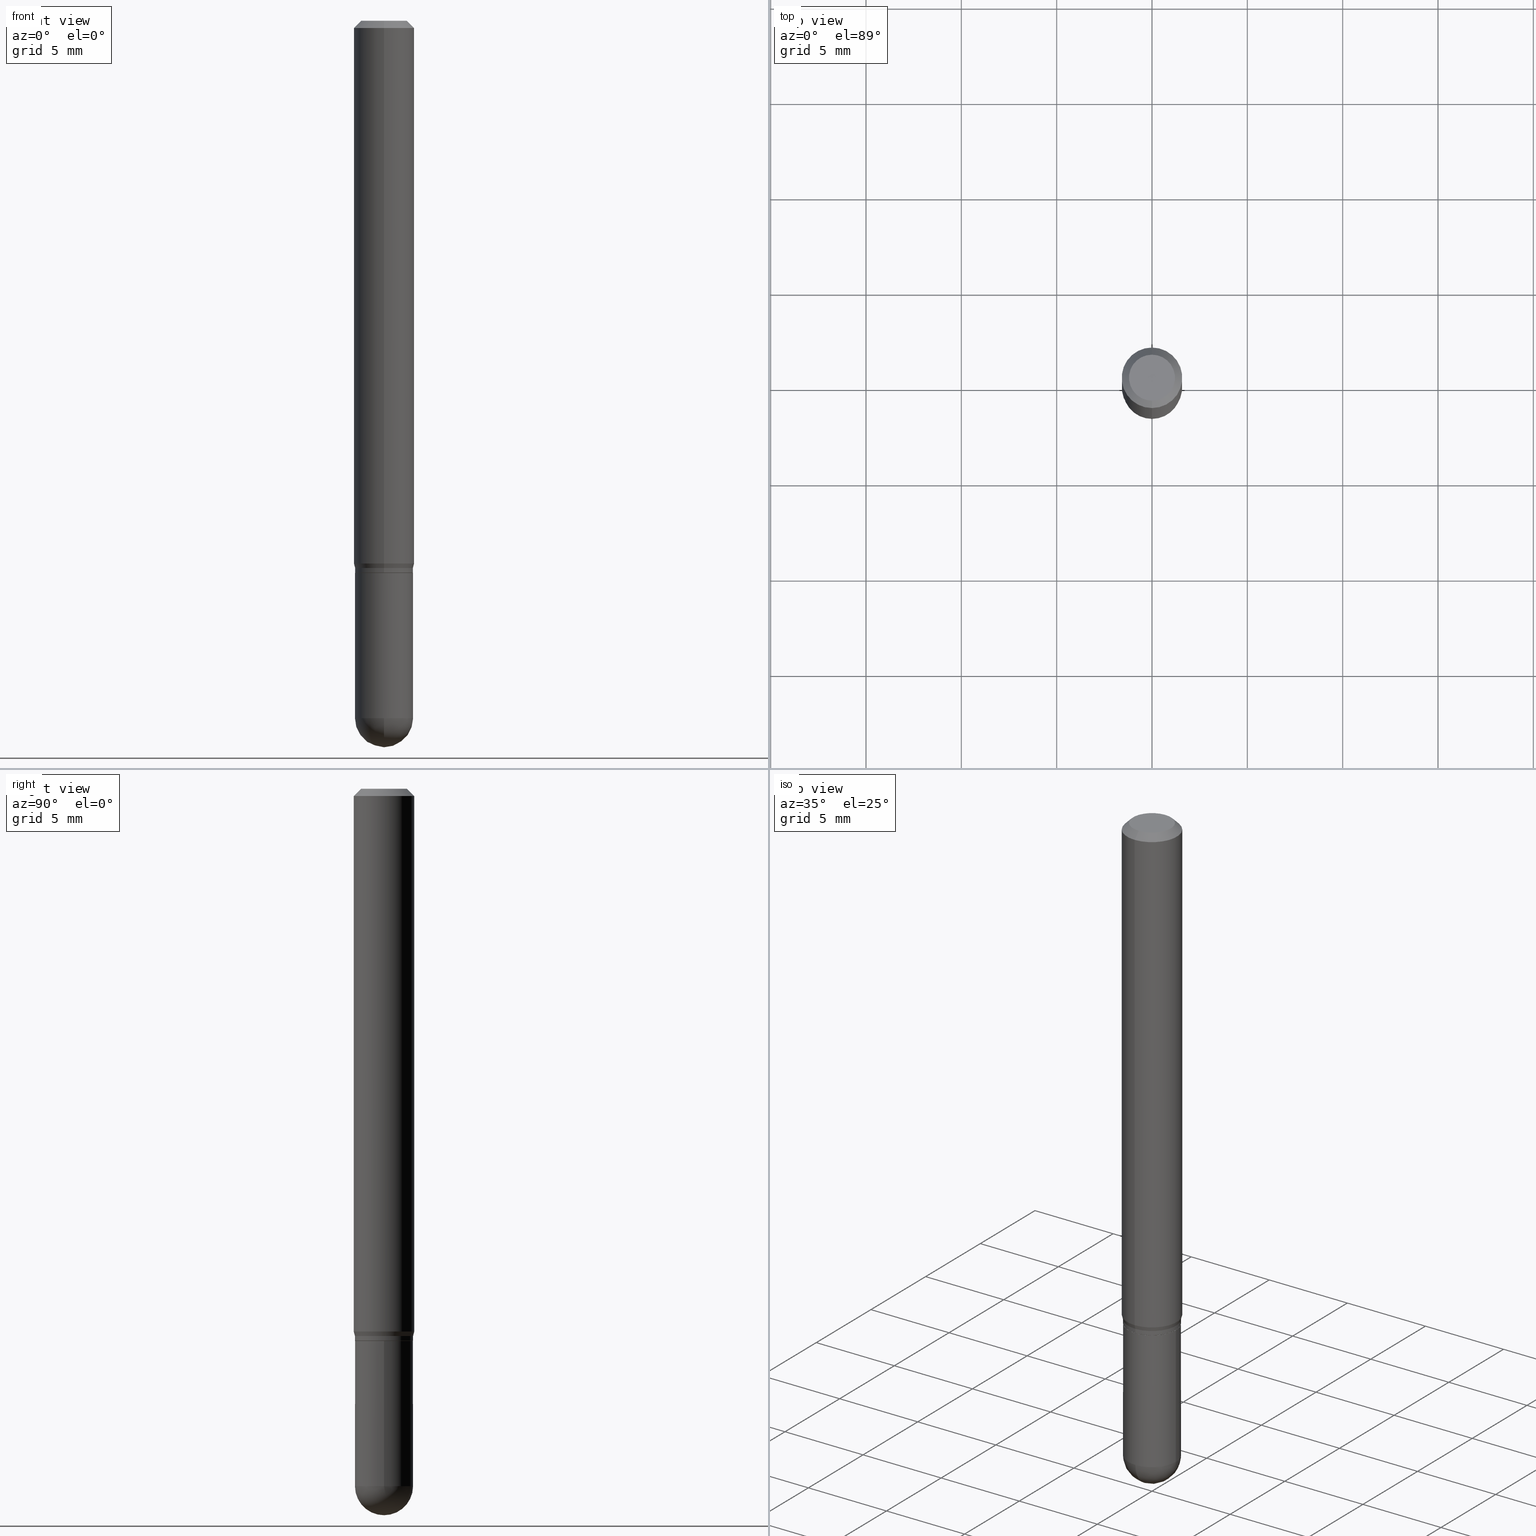
[diagram: canonical four-view strip — front | top / right | iso, engineering-drawing reading convention]
A machine part, canonical four-view strip (front | top / right | iso — engineering-drawing reading convention). The complete STEP part file that produces these views, byte-faithful:
ISO-10303-21;
HEADER;
FILE_DESCRIPTION (( 'STEP AP203' ),
    '1' );
FILE_NAME ('02605.STEP',
    '2024-03-07T20:43:27',
    ( '' ),
    ( '' ),
    'SwSTEP 2.0',
    'SolidWorks 2023',
    '' );
FILE_SCHEMA (( 'CONFIG_CONTROL_DESIGN' ));
ENDSEC;

DATA;
#1 = ORIENTED_EDGE ( 'NONE', *, *, #428, .T. ) ;
#2 = ORIENTED_EDGE ( 'NONE', *, *, #295, .F. ) ;
#3 = ORIENTED_EDGE ( 'NONE', *, *, #104, .F. ) ;
#4 = EDGE_CURVE ( 'NONE', #320, #436, #349, .T. ) ;
#5 = PRODUCT ( '02605', '02605', '', ( #13 ) ) ;
#6 = CARTESIAN_POINT ( 'NONE',  ( 2.786579962204963048E-29, -3.978588442596808727E-15, -1.139500000000000179 ) ) ;
#7 = AXIS2_PLACEMENT_3D ( 'NONE', #184, #374, #499 ) ;
#8 = LINE ( 'NONE', #171, #327 ) ;
#9 = DIMENSIONAL_EXPONENTS ( 1.000000000000000000, 0.000000000000000000, 0.000000000000000000, 0.000000000000000000, 0.000000000000000000, 0.000000000000000000, 0.000000000000000000 ) ;
#10 = CIRCLE ( 'NONE', #497, 0.06000000000000001166 ) ;
#11 = ADVANCED_FACE ( 'NONE', ( #50 ), #427, .F. ) ;
#12 = DIRECTION ( 'NONE',  ( -2.445440949719142652E-29, 3.491521230887940809E-15, 1.000000000000000000 ) ) ;
#13 = MECHANICAL_CONTEXT ( 'NONE', #162, 'mechanical' ) ;
#14 = DIRECTION ( 'NONE',  ( 1.000000000000000000, -6.982962677686266711E-15, 0.000000000000000000 ) ) ;
#15 = APPROVAL_STATUS ( 'not_yet_approved' ) ;
#16 = CIRCLE ( 'NONE', #276, 0.06000000000000006023 ) ;
#17 = DIRECTION ( 'NONE',  ( -2.445440949719142652E-29, 3.491521230887940809E-15, 1.000000000000000000 ) ) ;
#18 = VECTOR ( 'NONE', #413, 39.37007874015748143 ) ;
#19 = CARTESIAN_POINT ( 'NONE',  ( 4.263256414560955945E-16, 0.05999999999999502259, -1.440000000000000391 ) ) ;
#20 = CARTESIAN_POINT ( 'NONE',  ( -0.06000000000000001166, 4.263256414560601944E-16, -2.951361054152943763E-30 ) ) ;
#21 = EDGE_CURVE ( 'NONE', #472, #320, #191, .T. ) ;
#22 = CARTESIAN_POINT ( 'NONE',  ( 2.763348273182632256E-29, -3.945418990903373836E-15, -1.130000000000000338 ) ) ;
#23 = EDGE_CURVE ( 'NONE', #158, #119, #67, .T. ) ;
#24 = CIRCLE ( 'NONE', #65, 0.06250000000000000000 ) ;
#25 = DIRECTION ( 'NONE',  ( 1.000000000000000000, -6.982962677686268288E-15, 0.000000000000000000 ) ) ;
#26 = CARTESIAN_POINT ( 'NONE',  ( 3.668161424578794447E-31, -5.237281846332025450E-17, -0.01500000000000032904 ) ) ;
#27 = DIRECTION ( 'NONE',  ( -2.445468806185136597E-29, 3.491481338843145583E-15, 1.000000000000000000 ) ) ;
#28 = CARTESIAN_POINT ( 'NONE',  ( 4.440892098500901277E-16, 0.06249999999999610728, -1.120669872981079340 ) ) ;
#29 = LOCAL_TIME ( 15, 43, 27.00000000000000000, #230 ) ;
#30 = CARTESIAN_POINT ( 'NONE',  ( 0.000000000000000000, 0.000000000000000000, 0.000000000000000000 ) ) ;
#31 = APPROVAL_DATE_TIME ( #313, #72 ) ;
#32 = CARTESIAN_POINT ( 'NONE',  ( 2.763348273182632256E-29, -3.945418990903373836E-15, -1.130000000000000338 ) ) ;
#33 = ORIENTED_EDGE ( 'NONE', *, *, #396, .F. ) ;
#34 = CARTESIAN_POINT ( 'NONE',  ( 0.000000000000000000, 0.000000000000000000, 0.000000000000000000 ) ) ;
#35 = ORIENTED_EDGE ( 'NONE', *, *, #275, .T. ) ;
#36 = VECTOR ( 'NONE', #332, 39.37007874015748143 ) ;
#37 = ORIENTED_EDGE ( 'NONE', *, *, #190, .F. ) ;
#38 =( CONVERSION_BASED_UNIT ( 'INCH', #228 ) LENGTH_UNIT ( ) NAMED_UNIT ( #9 ) );
#39 = DIRECTION ( 'NONE',  ( -2.445440949719142932E-29, 3.491521230887940809E-15, 1.000000000000000000 ) ) ;
#40 = DATE_TIME_ROLE ( 'creation_date' ) ;
#41 = CALENDAR_DATE ( 2024, 7, 3 ) ;
#42 = ORIENTED_EDGE ( 'NONE', *, *, #255, .T. ) ;
#43 = ORIENTED_EDGE ( 'NONE', *, *, #344, .F. ) ;
#44 = SECURITY_CLASSIFICATION_LEVEL ( 'unclassified' ) ;
#45 = ORIENTED_EDGE ( 'NONE', *, *, #66, .T. ) ;
#46 = DIRECTION ( 'NONE',  ( -6.982962677686265922E-15, -1.000000000000000000, 4.591341165822291216E-15 ) ) ;
#47 = CC_DESIGN_DATE_AND_TIME_ASSIGNMENT ( #391, #40, ( #133 ) ) ;
#48 = ORIENTED_EDGE ( 'NONE', *, *, #118, .F. ) ;
#49 = APPROVAL_PERSON_ORGANIZATION ( #284, #430, #114 ) ;
#50 = FACE_OUTER_BOUND ( 'NONE', #149, .T. ) ;
#51 = EDGE_CURVE ( 'NONE', #197, #436, #509, .T. ) ;
#52 = AXIS2_PLACEMENT_3D ( 'NONE', #136, #172, #14 ) ;
#53 = LINE ( 'NONE', #206, #36 ) ;
#54 = CARTESIAN_POINT ( 'NONE',  ( 4.352074256530896070E-16, 0.05999999999999625078, -1.130000000000000560 ) ) ;
#55 = CALENDAR_DATE ( 2024, 7, 3 ) ;
#56 = SPHERICAL_SURFACE ( 'NONE', #90, 0.06000000000000009492 ) ;
#57 = DIRECTION ( 'NONE',  ( -2.445440949719142652E-29, 3.491521230887940809E-15, 1.000000000000000000 ) ) ;
#58 = CIRCLE ( 'NONE', #423, 0.04749999999999999362 ) ;
#59 = CC_DESIGN_APPROVAL ( #237, ( #106 ) ) ;
#60 = CYLINDRICAL_SURFACE ( 'NONE', #482, 0.06250000000000000000 ) ;
#61 = CONICAL_SURFACE ( 'NONE', #63, 0.06250000000000000000, 0.7853981633974483900 ) ;
#62 = CARTESIAN_POINT ( 'NONE',  ( -4.364351673553912750E-16, -0.06250000000000005551, -0.01500000000000011047 ) ) ;
#63 = AXIS2_PLACEMENT_3D ( 'NONE', #483, #435, #442 ) ;
#64 = CARTESIAN_POINT ( 'NONE',  ( 0.06000000000000001166, -4.189777606611760914E-16, 2.925706065477562106E-30 ) ) ;
#65 = AXIS2_PLACEMENT_3D ( 'NONE', #26, #180, #489 ) ;
#66 = EDGE_CURVE ( 'NONE', #79, #182, #16, .T. ) ;
#67 = CIRCLE ( 'NONE', #503, 0.06000000000000001166 ) ;
#68 =( GEOMETRIC_REPRESENTATION_CONTEXT ( 3 ) GLOBAL_UNCERTAINTY_ASSIGNED_CONTEXT ( ( #296 ) ) GLOBAL_UNIT_ASSIGNED_CONTEXT ( ( #38, #71, #449 ) ) REPRESENTATION_CONTEXT ( 'NONE', 'WORKASPACE' ) );
#69 = DIRECTION ( 'NONE',  ( -2.445468806185136597E-29, 3.491481338843145583E-15, 1.000000000000000000 ) ) ;
#70 = EDGE_LOOP ( 'NONE', ( #3, #470, #308, #477 ) ) ;
#71 =( NAMED_UNIT ( * ) PLANE_ANGLE_UNIT ( ) SI_UNIT ( $, .RADIAN. ) );
#72 = APPROVAL ( #267, 'UNSPECIFIED' ) ;
#73 = ORIENTED_EDGE ( 'NONE', *, *, #309, .F. ) ;
#74 = ORIENTED_EDGE ( 'NONE', *, *, #51, .T. ) ;
#75 = ADVANCED_FACE ( 'NONE', ( #233 ), #386, .T. ) ;
#76 = COORDINATED_UNIVERSAL_TIME_OFFSET ( 5, 0, .BEHIND. ) ;
#77 = AXIS2_PLACEMENT_3D ( 'NONE', #265, #221, #176 ) ;
#78 = ORIENTED_EDGE ( 'NONE', *, *, #375, .T. ) ;
#79 = VERTEX_POINT ( 'NONE', #446 ) ;
#80 = EDGE_LOOP ( 'NONE', ( #45, #273, #37, #312 ) ) ;
#81 = CARTESIAN_POINT ( 'NONE',  ( 2.786579962204963048E-29, -3.978588442596808727E-15, -1.139500000000000179 ) ) ;
#82 = ORIENTED_EDGE ( 'NONE', *, *, #4, .F. ) ;
#83 = EDGE_CURVE ( 'NONE', #512, #401, #471, .T. ) ;
#84 = ORIENTED_EDGE ( 'NONE', *, *, #190, .T. ) ;
#85 = AXIS2_PLACEMENT_3D ( 'NONE', #454, #379, #303 ) ;
#86 = CIRCLE ( 'NONE', #504, 0.06000000000000001166 ) ;
#87 = EDGE_LOOP ( 'NONE', ( #73, #508, #186, #264 ) ) ;
#88 = AXIS2_PLACEMENT_3D ( 'NONE', #331, #363, #246 ) ;
#89 = FACE_OUTER_BOUND ( 'NONE', #111, .T. ) ;
#90 = AXIS2_PLACEMENT_3D ( 'NONE', #170, #451, #175 ) ;
#91 = FACE_OUTER_BOUND ( 'NONE', #232, .T. ) ;
#92 = CARTESIAN_POINT ( 'NONE',  ( 3.660506712675090959E-29, -5.248243829457045539E-15, -1.500000000000000444 ) ) ;
#93 = DIRECTION ( 'NONE',  ( -2.445468806185136597E-29, 3.491481338843145583E-15, 1.000000000000000000 ) ) ;
#94 = FACE_OUTER_BOUND ( 'NONE', #395, .T. ) ;
#95 = APPROVAL_DATE_TIME ( #254, #237 ) ;
#96 = ADVANCED_FACE ( 'NONE', ( #94 ), #247, .T. ) ;
#97 = DIRECTION ( 'NONE',  ( -1.807323732225331717E-15, -0.2588190451025184080, 0.9659258262890689783 ) ) ;
#98 = DIRECTION ( 'NONE',  ( -2.445468806185136597E-29, 3.491481338843145583E-15, 1.000000000000000000 ) ) ;
#99 = CARTESIAN_POINT ( 'NONE',  ( 0.000000000000000000, 0.000000000000000000, 0.000000000000000000 ) ) ;
#100 = DIRECTION ( 'NONE',  ( -2.445440949719142652E-29, 3.491521230887940809E-15, 1.000000000000000000 ) ) ;
#101 = AXIS2_PLACEMENT_3D ( 'NONE', #242, #138, #405 ) ;
#102 = CARTESIAN_POINT ( 'NONE',  ( 2.763348273182632256E-29, -3.945418990903373836E-15, -1.130000000000000338 ) ) ;
#103 = CARTESIAN_POINT ( 'NONE',  ( -4.189777606611411350E-16, -0.06000000000000507705, -1.439999999999999947 ) ) ;
#104 = EDGE_CURVE ( 'NONE', #472, #383, #58, .T. ) ;
#105 = DATE_AND_TIME ( #340, #328 ) ;
#106 = PRODUCT_DEFINITION_FORMATION_WITH_SPECIFIED_SOURCE ( 'ANY', '', #5, .NOT_KNOWN. ) ;
#107 = ORIENTED_EDGE ( 'NONE', *, *, #271, .F. ) ;
#108 = DIRECTION ( 'NONE',  ( -2.445440949719142652E-29, 3.491521230887940809E-15, 1.000000000000000000 ) ) ;
#109 = SHAPE_DEFINITION_REPRESENTATION ( #356, #199 ) ;
#110 = CC_DESIGN_PERSON_AND_ORGANIZATION_ASSIGNMENT ( #240, #161, ( #342 ) ) ;
#111 = EDGE_LOOP ( 'NONE', ( #268, #476, #115, #113 ) ) ;
#112 = CYLINDRICAL_SURFACE ( 'NONE', #282, 0.06000000000000001166 ) ;
#113 = ORIENTED_EDGE ( 'NONE', *, *, #375, .F. ) ;
#114 = APPROVAL_ROLE ( '' ) ;
#115 = ORIENTED_EDGE ( 'NONE', *, *, #23, .F. ) ;
#116 = EDGE_LOOP ( 'NONE', ( #468, #239, #341, #120 ) ) ;
#117 = AXIS2_PLACEMENT_3D ( 'NONE', #362, #210, #369 ) ;
#118 = EDGE_CURVE ( 'NONE', #197, #343, #440, .T. ) ;
#119 = VERTEX_POINT ( 'NONE', #19 ) ;
#120 = ORIENTED_EDGE ( 'NONE', *, *, #188, .F. ) ;
#121 = EDGE_CURVE ( 'NONE', #79, #148, #8, .T. ) ;
#122 = ORIENTED_EDGE ( 'NONE', *, *, #357, .T. ) ;
#123 = PRODUCT_RELATED_PRODUCT_CATEGORY ( 'detail', '', ( #5 ) ) ;
#124 = DIRECTION ( 'NONE',  ( 2.445440949719142091E-29, -3.491521230887940809E-15, -1.000000000000000000 ) ) ;
#125 = ORIENTED_EDGE ( 'NONE', *, *, #118, .T. ) ;
#126 = CIRCLE ( 'NONE', #426, 0.06250000000000000000 ) ;
#127 = CC_DESIGN_PERSON_AND_ORGANIZATION_ASSIGNMENT ( #146, #459, ( #133 ) ) ;
#128 = EDGE_CURVE ( 'NONE', #343, #320, #280, .T. ) ;
#129 = CARTESIAN_POINT ( 'NONE',  ( -4.364351673553916201E-16, -0.06250000000000000000, 2.182200769304962759E-16 ) ) ;
#130 = DIRECTION ( 'NONE',  ( -6.982962677686265922E-15, -1.000000000000000000, 4.553079989440434359E-15 ) ) ;
#131 = CYLINDRICAL_SURFACE ( 'NONE', #218, 0.06000000000000012962 ) ;
#132 = ORGANIZATION ( 'UNSPECIFIED', 'UNSPECIFIED', '' ) ;
#133 = PRODUCT_DEFINITION ( 'UNKNOWN', '', #106, #394 ) ;
#134 = DIRECTION ( 'NONE',  ( -6.982962677686265922E-15, -1.000000000000000000, 4.591341165822291216E-15 ) ) ;
#135 = APPLICATION_PROTOCOL_DEFINITION ( 'international standard', 'config_control_design', 1994, #201 ) ;
#136 = CARTESIAN_POINT ( 'NONE',  ( 3.521475080906597305E-29, -5.027733127934130649E-15, -1.440000000000000169 ) ) ;
#137 = MANIFOLD_SOLID_BREP ( 'Body-Move/Copy2[1]', #177 ) ;
#138 = DIRECTION ( 'NONE',  ( 1.000000000000000000, -6.982962677686265922E-15, 4.883557194083112901E-29 ) ) ;
#139 = DIRECTION ( 'NONE',  ( -2.445440949719142652E-29, 3.491521230887940809E-15, 1.000000000000000000 ) ) ;
#140 = VECTOR ( 'NONE', #204, 39.37007874015748143 ) ;
#141 = CIRCLE ( 'NONE', #323, 0.05949999999999999734 ) ;
#142 = FACE_OUTER_BOUND ( 'NONE', #187, .T. ) ;
#143 = FACE_OUTER_BOUND ( 'NONE', #272, .T. ) ;
#144 = FACE_OUTER_BOUND ( 'NONE', #225, .T. ) ;
#145 = LINE ( 'NONE', #463, #388 ) ;
#146 = PERSON_AND_ORGANIZATION ( #452, #132 ) ;
#147 = VECTOR ( 'NONE', #330, 39.37007874015748143 ) ;
#148 = VERTEX_POINT ( 'NONE', #281 ) ;
#149 = EDGE_LOOP ( 'NONE', ( #155, #316 ) ) ;
#150 = ORIENTED_EDGE ( 'NONE', *, *, #203, .F. ) ;
#151 = DIRECTION ( 'NONE',  ( -2.445440949719142652E-29, 3.491521230887940809E-15, 1.000000000000000000 ) ) ;
#152 = VERTEX_POINT ( 'NONE', #439 ) ;
#153 = VECTOR ( 'NONE', #229, 39.37007874015748143 ) ;
#154 = ADVANCED_FACE ( 'NONE', ( #219 ), #461, .T. ) ;
#155 = ORIENTED_EDGE ( 'NONE', *, *, #203, .T. ) ;
#156 = VECTOR ( 'NONE', #97, 39.37007874015748854 ) ;
#157 = VERTEX_POINT ( 'NONE', #492 ) ;
#158 = VERTEX_POINT ( 'NONE', #215 ) ;
#159 = ORIENTED_EDGE ( 'NONE', *, *, #21, .F. ) ;
#160 = ORIENTED_EDGE ( 'NONE', *, *, #255, .F. ) ;
#161 = PERSON_AND_ORGANIZATION_ROLE ( 'classification_officer' ) ;
#162 = APPLICATION_CONTEXT ( 'configuration controlled 3d designs of mechanical parts and assemblies' ) ;
#163 = AXIS2_PLACEMENT_3D ( 'NONE', #244, #12, #402 ) ;
#164 = VECTOR ( 'NONE', #373, 39.37007874015748854 ) ;
#165 = EDGE_CURVE ( 'NONE', #231, #197, #338, .T. ) ;
#166 = CARTESIAN_POINT ( 'NONE',  ( 3.840629472727447874E-16, 0.04749999999999999362, -4.939923113072091241E-16 ) ) ;
#167 = ADVANCED_FACE ( 'NONE', ( #144 ), #61, .T. ) ;
#168 = CIRCLE ( 'NONE', #52, 0.06000000000000001166 ) ;
#169 = SPHERICAL_SURFACE ( 'NONE', #101, 0.06000000000000009492 ) ;
#170 = CARTESIAN_POINT ( 'NONE',  ( 3.516344083171520973E-29, -5.035081008729014505E-15, -1.440000000000000169 ) ) ;
#171 = CARTESIAN_POINT ( 'NONE',  ( -4.189777606611768802E-16, -0.06000000000000012962, 2.094912738532768765E-16 ) ) ;
#172 = DIRECTION ( 'NONE',  ( -2.445468806185136597E-29, 3.491481338843145583E-15, 1.000000000000000000 ) ) ;
#173 = DIRECTION ( 'NONE',  ( -6.982962677686265922E-15, -1.000000000000000000, 4.553079989440423315E-15 ) ) ;
#174 = CARTESIAN_POINT ( 'NONE',  ( 4.227729277772874483E-16, 0.05949999999999602135, -1.140000000000000346 ) ) ;
#175 = DIRECTION ( 'NONE',  ( -6.982962677686265922E-15, -1.000000000000000000, 4.553079989440431203E-15 ) ) ;
#176 = DIRECTION ( 'NONE',  ( 6.982962677686265922E-15, 1.000000000000000000, -3.483106191921935554E-15 ) ) ;
#177 = CLOSED_SHELL ( 'NONE', ( #96, #335, #420, #261, #444 ) ) ;
#178 = ADVANCED_FACE ( 'NONE', ( #91 ), #60, .T. ) ;
#179 = CIRCLE ( 'NONE', #302, 0.06000000000000009492 ) ;
#180 = DIRECTION ( 'NONE',  ( -2.445440949719142652E-29, 3.491521230887940809E-15, 1.000000000000000000 ) ) ;
#181 = PLANE ( 'NONE',  #443 ) ;
#182 = VERTEX_POINT ( 'NONE', #216 ) ;
#183 = ORIENTED_EDGE ( 'NONE', *, *, #222, .F. ) ;
#184 = CARTESIAN_POINT ( 'NONE',  ( 4.189777606612038494E-16, 0.05999999999999602179, -1.140000000000000346 ) ) ;
#185 = AXIS2_PLACEMENT_3D ( 'NONE', #364, #17, #324 ) ;
#186 = ORIENTED_EDGE ( 'NONE', *, *, #457, .T. ) ;
#187 = EDGE_LOOP ( 'NONE', ( #429, #125, #399, #262 ) ) ;
#188 = EDGE_CURVE ( 'NONE', #119, #152, #10, .T. ) ;
#189 = DIRECTION ( 'NONE',  ( -2.445440949719142652E-29, 3.491521230887940809E-15, 1.000000000000000000 ) ) ;
#190 = EDGE_CURVE ( 'NONE', #148, #231, #318, .T. ) ;
#191 = LINE ( 'NONE', #474, #153 ) ;
#192 = COORDINATED_UNIVERSAL_TIME_OFFSET ( 5, 0, .BEHIND. ) ;
#193 = ORIENTED_EDGE ( 'NONE', *, *, #457, .F. ) ;
#194 = AXIS2_PLACEMENT_3D ( 'NONE', #198, #124, #195 ) ;
#195 = DIRECTION ( 'NONE',  ( 6.982962677686265922E-15, 1.000000000000000000, -3.491521230887940809E-15 ) ) ;
#196 = AXIS2_PLACEMENT_3D ( 'NONE', #32, #108, #339 ) ;
#197 = VERTEX_POINT ( 'NONE', #28 ) ;
#198 = CARTESIAN_POINT ( 'NONE',  ( 3.316907271900976096E-16, 0.04749999999999999362, -3.299197848871931212E-16 ) ) ;
#199 = ADVANCED_BREP_SHAPE_REPRESENTATION ( '02605', ( #137, #478, #351 ), #68 ) ;
#200 = EDGE_CURVE ( 'NONE', #436, #320, #24, .T. ) ;
#201 = APPLICATION_CONTEXT ( 'configuration controlled 3d designs of mechanical parts and assemblies' ) ;
#202 = AXIS2_PLACEMENT_3D ( 'NONE', #6, #360, #130 ) ;
#203 = EDGE_CURVE ( 'NONE', #383, #472, #226, .T. ) ;
#204 = DIRECTION ( 'NONE',  ( -2.445440949719142932E-29, 3.491521230887940809E-15, 1.000000000000000000 ) ) ;
#205 = EDGE_CURVE ( 'NONE', #158, #422, #491, .T. ) ;
#206 = CARTESIAN_POINT ( 'NONE',  ( 4.364351673553919652E-16, 0.06249999999999995143, -0.01500000000000054588 ) ) ;
#207 = DIRECTION ( 'NONE',  ( -2.445440949719142652E-29, 3.491521230887940809E-15, 1.000000000000000000 ) ) ;
#208 = DIRECTION ( 'NONE',  ( -6.982962677686266711E-15, -1.000000000000000000, 3.491521230887940809E-15 ) ) ;
#209 = CC_DESIGN_DATE_AND_TIME_ASSIGNMENT ( #321, #475, ( #342 ) ) ;
#210 = DIRECTION ( 'NONE',  ( -2.445468806185136597E-29, 3.491481338843145583E-15, 1.000000000000000000 ) ) ;
#211 = DIRECTION ( 'NONE',  ( -2.445440949719142652E-29, 3.491521230887940809E-15, 1.000000000000000000 ) ) ;
#212 = DIRECTION ( 'NONE',  ( -6.982962677686265922E-15, -1.000000000000000000, 4.370956789862821150E-15 ) ) ;
#213 = AXIS2_PLACEMENT_3D ( 'NONE', #30, #306, #297 ) ;
#214 = ADVANCED_FACE ( 'NONE', ( #286 ), #416, .T. ) ;
#215 = CARTESIAN_POINT ( 'NONE',  ( 0.06000000000000001166, -4.922988687768835701E-15, -1.440000000000000169 ) ) ;
#216 = CARTESIAN_POINT ( 'NONE',  ( 4.263256414560887906E-16, 0.05999999999999614669, -1.139500000000000401 ) ) ;
#217 = DIRECTION ( 'NONE',  ( -6.982962677686265922E-15, -1.000000000000000000, 0.000000000000000000 ) ) ;
#218 = AXIS2_PLACEMENT_3D ( 'NONE', #490, #100, #252 ) ;
#219 = FACE_OUTER_BOUND ( 'NONE', #301, .T. ) ;
#220 = ADVANCED_FACE ( 'NONE', ( #142 ), #412, .T. ) ;
#221 = DIRECTION ( 'NONE',  ( 2.445440949719142652E-29, -3.491521230887940809E-15, -1.000000000000000000 ) ) ;
#222 = EDGE_CURVE ( 'NONE', #148, #343, #257, .T. ) ;
#223 = DIRECTION ( 'NONE',  ( 1.000000000000000000, -6.982962677686266711E-15, 0.000000000000000000 ) ) ;
#224 = COORDINATED_UNIVERSAL_TIME_OFFSET ( 5, 0, .BEHIND. ) ;
#225 = EDGE_LOOP ( 'NONE', ( #159, #150, #433, #425 ) ) ;
#226 = CIRCLE ( 'NONE', #88, 0.04749999999999999362 ) ;
#227 = ORIENTED_EDGE ( 'NONE', *, *, #23, .T. ) ;
#228 = LENGTH_MEASURE_WITH_UNIT ( LENGTH_MEASURE( 0.02539999999999999897 ), #389 );
#229 = DIRECTION ( 'NONE',  ( -4.851104656540964275E-15, -0.7071067811865500152, -0.7071067811865450192 ) ) ;
#230 = COORDINATED_UNIVERSAL_TIME_OFFSET ( 5, 0, .BEHIND. ) ;
#231 = VERTEX_POINT ( 'NONE', #54 ) ;
#232 = EDGE_LOOP ( 'NONE', ( #387, #74, #82, #354 ) ) ;
#233 = FACE_OUTER_BOUND ( 'NONE', #87, .T. ) ;
#234 = ORIENTED_EDGE ( 'NONE', *, *, #165, .T. ) ;
#235 = CARTESIAN_POINT ( 'NONE',  ( 3.668161424578794447E-31, -5.237281846332025450E-17, -0.01500000000000032904 ) ) ;
#236 = CONICAL_SURFACE ( 'NONE', #77, 0.06250000000000000000, 0.7853981633974483900 ) ;
#237 = APPROVAL ( #15, 'UNSPECIFIED' ) ;
#238 = CC_DESIGN_SECURITY_CLASSIFICATION ( #342, ( #106 ) ) ;
#239 = ORIENTED_EDGE ( 'NONE', *, *, #500, .T. ) ;
#240 = PERSON_AND_ORGANIZATION ( #452, #132 ) ;
#241 = APPLICATION_PROTOCOL_DEFINITION ( 'international standard', 'config_control_design', 1994, #162 ) ;
#242 = CARTESIAN_POINT ( 'NONE',  ( 3.516344083171520973E-29, -5.035081008729014505E-15, -1.440000000000000169 ) ) ;
#243 = DIRECTION ( 'NONE',  ( -2.445440949719142652E-29, 3.491521230887940809E-15, 1.000000000000000000 ) ) ;
#244 = CARTESIAN_POINT ( 'NONE',  ( 2.787802682679822858E-29, -3.980334203212252420E-15, -1.140000000000000124 ) ) ;
#245 = CARTESIAN_POINT ( 'NONE',  ( 2.787834439051055989E-29, -3.980288726281186698E-15, -1.140000000000000124 ) ) ;
#246 = DIRECTION ( 'NONE',  ( -6.982962677686266711E-15, -1.000000000000000000, 3.491521230887940809E-15 ) ) ;
#247 = CYLINDRICAL_SURFACE ( 'NONE', #377, 0.06000000000000001166 ) ;
#248 = PERSON_AND_ORGANIZATION ( #452, #132 ) ;
#249 = PERSON_AND_ORGANIZATION_ROLE ( 'design_owner' ) ;
#250 = VECTOR ( 'NONE', #365, 39.37007874015748143 ) ;
#251 = DIRECTION ( 'NONE',  ( 1.000000000000000000, 0.000000000000000000, 0.000000000000000000 ) ) ;
#252 = DIRECTION ( 'NONE',  ( -6.982962677686265922E-15, -1.000000000000000000, 3.491521230887940414E-15 ) ) ;
#253 = CARTESIAN_POINT ( 'NONE',  ( 0.000000000000000000, 0.000000000000000000, 0.000000000000000000 ) ) ;
#254 = DATE_AND_TIME ( #55, #292 ) ;
#255 = EDGE_CURVE ( 'NONE', #401, #512, #141, .T. ) ;
#256 = DIRECTION ( 'NONE',  ( 1.000000000000000000, -7.105427357601001070E-15, 4.926315508542082329E-29 ) ) ;
#257 = LINE ( 'NONE', #448, #156 ) ;
#258 = CARTESIAN_POINT ( 'NONE',  ( 3.516344083171520973E-29, -5.035081008729014505E-15, -1.440000000000000169 ) ) ;
#259 = APPROVAL_DATE_TIME ( #105, #430 ) ;
#260 = AXIS2_PLACEMENT_3D ( 'NONE', #484, #57, #212 ) ;
#261 = ADVANCED_FACE ( 'NONE', ( #372 ), #56, .T. ) ;
#262 = ORIENTED_EDGE ( 'NONE', *, *, #200, .F. ) ;
#263 = FACE_OUTER_BOUND ( 'NONE', #70, .T. ) ;
#264 = ORIENTED_EDGE ( 'NONE', *, *, #275, .F. ) ;
#265 = CARTESIAN_POINT ( 'NONE',  ( 3.668161424578794447E-31, -5.237281846332025450E-17, -0.01500000000000032904 ) ) ;
#266 = EDGE_LOOP ( 'NONE', ( #274, #1, #432, #48 ) ) ;
#267 = APPROVAL_STATUS ( 'not_yet_approved' ) ;
#268 = ORIENTED_EDGE ( 'NONE', *, *, #500, .F. ) ;
#269 = AXIS2_PLACEMENT_3D ( 'NONE', #245, #488, #25 ) ;
#270 = EDGE_LOOP ( 'NONE', ( #160, #390 ) ) ;
#271 = EDGE_CURVE ( 'NONE', #343, #197, #126, .T. ) ;
#272 = EDGE_LOOP ( 'NONE', ( #122, #305 ) ) ;
#273 = ORIENTED_EDGE ( 'NONE', *, *, #295, .T. ) ;
#274 = ORIENTED_EDGE ( 'NONE', *, *, #165, .F. ) ;
#275 = EDGE_CURVE ( 'NONE', #182, #79, #410, .T. ) ;
#276 = AXIS2_PLACEMENT_3D ( 'NONE', #81, #189, #345 ) ;
#277 = DIRECTION ( 'NONE',  ( 1.000000000000000000, -6.982962677686266711E-15, 0.000000000000000000 ) ) ;
#278 = LOCAL_TIME ( 15, 43, 27.00000000000000000, #224 ) ;
#279 = PERSON_AND_ORGANIZATION ( #452, #132 ) ;
#280 = LINE ( 'NONE', #129, #140 ) ;
#281 = CARTESIAN_POINT ( 'NONE',  ( -4.189777606611496152E-16, -0.06000000000000414030, -1.130000000000000115 ) ) ;
#282 = AXIS2_PLACEMENT_3D ( 'NONE', #34, #27, #384 ) ;
#283 = CARTESIAN_POINT ( 'NONE',  ( 2.740531998504480438E-29, -3.912842654329929133E-15, -1.120669872981078896 ) ) ;
#284 = PERSON_AND_ORGANIZATION ( #452, #132 ) ;
#285 = LINE ( 'NONE', #411, #18 ) ;
#286 = FACE_OUTER_BOUND ( 'NONE', #266, .T. ) ;
#287 = PERSON_AND_ORGANIZATION_ROLE ( 'creator' ) ;
#288 = EDGE_CURVE ( 'NONE', #317, #119, #314, .T. ) ;
#289 = DIRECTION ( 'NONE',  ( 5.024295867788190974E-15, 0.7071067811865681119, 0.7071067811865270336 ) ) ;
#290 = CARTESIAN_POINT ( 'NONE',  ( 2.787802682679822858E-29, -3.980334203212252420E-15, -1.140000000000000124 ) ) ;
#291 = COORDINATED_UNIVERSAL_TIME_OFFSET ( 5, 0, .BEHIND. ) ;
#292 = LOCAL_TIME ( 15, 43, 27.00000000000000000, #291 ) ;
#293 = DIRECTION ( 'NONE',  ( -6.982962677686265922E-15, -1.000000000000000000, 3.491521230887940414E-15 ) ) ;
#294 = DIRECTION ( 'NONE',  ( -6.982962677686265922E-15, -1.000000000000000000, 3.491521230887940809E-15 ) ) ;
#295 = EDGE_CURVE ( 'NONE', #182, #231, #285, .T. ) ;
#296 = UNCERTAINTY_MEASURE_WITH_UNIT (LENGTH_MEASURE( 1.000000000000000082E-05 ), #38, 'distance_accuracy_value', 'NONE');
#297 = DIRECTION ( 'NONE',  ( -6.982962677686265922E-15, -1.000000000000000000, 3.491521230887940414E-15 ) ) ;
#298 = ADVANCED_FACE ( 'NONE', ( #493 ), #495, .T. ) ;
#299 = CC_DESIGN_PERSON_AND_ORGANIZATION_ASSIGNMENT ( #248, #287, ( #106 ) ) ;
#300 = CARTESIAN_POINT ( 'NONE',  ( -4.154862793223048825E-16, -0.05950000000000398026, -1.139999999999999902 ) ) ;
#301 = EDGE_LOOP ( 'NONE', ( #42, #319, #392, #193 ) ) ;
#302 = AXIS2_PLACEMENT_3D ( 'NONE', #258, #415, #217 ) ;
#303 = DIRECTION ( 'NONE',  ( -6.982962677686265922E-15, -1.000000000000000000, 4.591341165822291216E-15 ) ) ;
#304 = CALENDAR_DATE ( 2024, 7, 3 ) ;
#305 = ORIENTED_EDGE ( 'NONE', *, *, #344, .T. ) ;
#306 = DIRECTION ( 'NONE',  ( -2.445440949719142652E-29, 3.491521230887940809E-15, 1.000000000000000000 ) ) ;
#307 = DIRECTION ( 'NONE',  ( -2.445440949719142652E-29, 3.491521230887940809E-15, 1.000000000000000000 ) ) ;
#308 = ORIENTED_EDGE ( 'NONE', *, *, #4, .T. ) ;
#309 = EDGE_CURVE ( 'NONE', #512, #182, #441, .T. ) ;
#310 = DIRECTION ( 'NONE',  ( -2.445440949719142652E-29, 3.491521230887940809E-15, 1.000000000000000000 ) ) ;
#311 = CARTESIAN_POINT ( 'NONE',  ( 2.787802682679822858E-29, -3.980334203212252420E-15, -1.140000000000000124 ) ) ;
#312 = ORIENTED_EDGE ( 'NONE', *, *, #121, .F. ) ;
#313 = DATE_AND_TIME ( #41, #29 ) ;
#314 = CIRCLE ( 'NONE', #453, 0.06000000000000009492 ) ;
#315 = ORIENTED_EDGE ( 'NONE', *, *, #428, .F. ) ;
#316 = ORIENTED_EDGE ( 'NONE', *, *, #104, .T. ) ;
#317 = VERTEX_POINT ( 'NONE', #92 ) ;
#318 = CIRCLE ( 'NONE', #465, 0.06000000000000019901 ) ;
#319 = ORIENTED_EDGE ( 'NONE', *, *, #309, .T. ) ;
#320 = VERTEX_POINT ( 'NONE', #62 ) ;
#321 = DATE_AND_TIME ( #348, #480 ) ;
#322 = CARTESIAN_POINT ( 'NONE',  ( 8.024593496627658608E-45, -1.145725418801816720E-30, -3.281450528400319563E-16 ) ) ;
#323 = AXIS2_PLACEMENT_3D ( 'NONE', #290, #207, #134 ) ;
#324 = DIRECTION ( 'NONE',  ( -6.982962677686265922E-15, -1.000000000000000000, 4.553079989440423315E-15 ) ) ;
#325 = DIRECTION ( 'NONE',  ( -2.445440949719142652E-29, 3.491521230887940809E-15, 1.000000000000000000 ) ) ;
#326 = CARTESIAN_POINT ( 'NONE',  ( 3.516344083171520973E-29, -5.035081008729014505E-15, -1.440000000000000169 ) ) ;
#327 = VECTOR ( 'NONE', #481, 39.37007874015748143 ) ;
#328 = LOCAL_TIME ( 15, 43, 27.00000000000000000, #76 ) ;
#329 = CARTESIAN_POINT ( 'NONE',  ( -4.364351673553640100E-16, -0.06250000000000388578, -1.120669872981078674 ) ) ;
#330 = DIRECTION ( 'NONE',  ( -2.445468806185136877E-29, 3.491481338843145188E-15, 1.000000000000000000 ) ) ;
#331 = CARTESIAN_POINT ( 'NONE',  ( 8.024593496627658608E-45, -1.145725418801816720E-30, -3.281450528400319563E-16 ) ) ;
#332 = DIRECTION ( 'NONE',  ( 4.937700262164548042E-15, 0.7071067811865451302, -0.7071067811865499042 ) ) ;
#333 = CARTESIAN_POINT ( 'NONE',  ( -3.773273898774340269E-16, -0.04749999999999999362, -1.622977943728547640E-16 ) ) ;
#334 = AXIS2_PLACEMENT_3D ( 'NONE', #102, #243, #336 ) ;
#335 = ADVANCED_FACE ( 'NONE', ( #89 ), #169, .T. ) ;
#336 = DIRECTION ( 'NONE',  ( -6.982962677686265922E-15, -1.000000000000000000, 4.553079989440423315E-15 ) ) ;
#337 = CARTESIAN_POINT ( 'NONE',  ( 3.521475080906597305E-29, -5.027733127934130649E-15, -1.440000000000000169 ) ) ;
#338 = LINE ( 'NONE', #498, #164 ) ;
#339 = DIRECTION ( 'NONE',  ( -6.982962677686265922E-15, -1.000000000000000000, 4.553079989440423315E-15 ) ) ;
#340 = CALENDAR_DATE ( 2024, 7, 3 ) ;
#341 = ORIENTED_EDGE ( 'NONE', *, *, #511, .F. ) ;
#342 = SECURITY_CLASSIFICATION ( '', '', #44 ) ;
#343 = VERTEX_POINT ( 'NONE', #329 ) ;
#344 = EDGE_CURVE ( 'NONE', #157, #422, #378, .T. ) ;
#345 = DIRECTION ( 'NONE',  ( -6.982962677686265922E-15, -1.000000000000000000, 4.553079989440434359E-15 ) ) ;
#346 = ORIENTED_EDGE ( 'NONE', *, *, #396, .T. ) ;
#347 = EDGE_LOOP ( 'NONE', ( #84, #234, #107, #183 ) ) ;
#348 = CALENDAR_DATE ( 2024, 7, 3 ) ;
#349 = CIRCLE ( 'NONE', #458, 0.06250000000000000000 ) ;
#350 = ORIENTED_EDGE ( 'NONE', *, *, #357, .F. ) ;
#351 = AXIS2_PLACEMENT_3D ( 'NONE', #99, #404, #251 ) ;
#352 = EDGE_LOOP ( 'NONE', ( #2, #35, #501, #315 ) ) ;
#353 = EDGE_CURVE ( 'NONE', #383, #436, #53, .T. ) ;
#354 = ORIENTED_EDGE ( 'NONE', *, *, #128, .F. ) ;
#355 = CARTESIAN_POINT ( 'NONE',  ( 3.521475080906597305E-29, -5.027733127934130649E-15, -1.440000000000000169 ) ) ;
#356 = PRODUCT_DEFINITION_SHAPE ( 'NONE', 'NONE',  #133 ) ;
#357 = EDGE_CURVE ( 'NONE', #422, #157, #400, .T. ) ;
#358 = PERSON_AND_ORGANIZATION_ROLE ( 'design_supplier' ) ;
#359 = APPROVAL_PERSON_ORGANIZATION ( #279, #72, #424 ) ;
#360 = DIRECTION ( 'NONE',  ( -2.445440949719142652E-29, 3.491521230887940809E-15, 1.000000000000000000 ) ) ;
#361 = PERSON_AND_ORGANIZATION ( #452, #132 ) ;
#362 = CARTESIAN_POINT ( 'NONE',  ( 2.787834439051055989E-29, -3.980288726281186698E-15, -1.140000000000000124 ) ) ;
#363 = DIRECTION ( 'NONE',  ( -2.445440949719142652E-29, 3.491521230887940809E-15, 1.000000000000000000 ) ) ;
#364 = CARTESIAN_POINT ( 'NONE',  ( 2.763348273182632256E-29, -3.945418990903373836E-15, -1.130000000000000338 ) ) ;
#365 = DIRECTION ( 'NONE',  ( -2.445468806185136877E-29, 3.491481338843145188E-15, 1.000000000000000000 ) ) ;
#366 = DIRECTION ( 'NONE',  ( 1.000000000000000000, -6.982962677686266711E-15, 4.876176775795935793E-29 ) ) ;
#367 = APPROVAL_PERSON_ORGANIZATION ( #361, #237, #447 ) ;
#368 = CC_DESIGN_APPROVAL ( #72, ( #342 ) ) ;
#369 = DIRECTION ( 'NONE',  ( 1.000000000000000000, -6.982962677686268288E-15, 0.000000000000000000 ) ) ;
#370 = DIRECTION ( 'NONE',  ( -6.982962677686265922E-15, -1.000000000000000000, 3.491521230887940414E-15 ) ) ;
#371 = PERSON_AND_ORGANIZATION ( #452, #132 ) ;
#372 = FACE_OUTER_BOUND ( 'NONE', #116, .T. ) ;
#373 = DIRECTION ( 'NONE',  ( 1.839019923739601893E-15, 0.2588190451025252359, 0.9659258262890670910 ) ) ;
#374 = DIRECTION ( 'NONE',  ( 2.438088387897960049E-29, -3.491481338843145188E-15, -1.000000000000000000 ) ) ;
#375 = EDGE_CURVE ( 'NONE', #464, #158, #168, .T. ) ;
#376 = CARTESIAN_POINT ( 'NONE',  ( 3.521475080906597305E-29, -5.027733127934130649E-15, -1.440000000000000169 ) ) ;
#377 = AXIS2_PLACEMENT_3D ( 'NONE', #407, #98, #366 ) ;
#378 = CIRCLE ( 'NONE', #269, 0.05999999999999999778 ) ;
#379 = DIRECTION ( 'NONE',  ( -2.445440949719142652E-29, 3.491521230887940809E-15, 1.000000000000000000 ) ) ;
#380 = FACE_OUTER_BOUND ( 'NONE', #270, .T. ) ;
#381 = CARTESIAN_POINT ( 'NONE',  ( 4.245492846166878976E-16, 0.05949999999999602135, -1.140000000000000346 ) ) ;
#382 = CC_DESIGN_PERSON_AND_ORGANIZATION_ASSIGNMENT ( #371, #358, ( #106 ) ) ;
#383 = VERTEX_POINT ( 'NONE', #166 ) ;
#384 = DIRECTION ( 'NONE',  ( 1.000000000000000000, -6.982962677686266711E-15, 4.876176775795935793E-29 ) ) ;
#385 = AXIS2_PLACEMENT_3D ( 'NONE', #311, #151, #46 ) ;
#386 = CONICAL_SURFACE ( 'NONE', #385, 0.05949999999999999734, 0.7853981633974739252 ) ;
#387 = ORIENTED_EDGE ( 'NONE', *, *, #271, .T. ) ;
#388 = VECTOR ( 'NONE', #455, 39.37007874015748143 ) ;
#389 =( LENGTH_UNIT ( ) NAMED_UNIT ( * ) SI_UNIT ( $, .METRE. ) );
#390 = ORIENTED_EDGE ( 'NONE', *, *, #83, .F. ) ;
#391 = DATE_AND_TIME ( #304, #278 ) ;
#392 = ORIENTED_EDGE ( 'NONE', *, *, #66, .F. ) ;
#393 = ORIENTED_EDGE ( 'NONE', *, *, #188, .T. ) ;
#394 = DESIGN_CONTEXT ( 'detailed design', #201, 'design' ) ;
#395 = EDGE_LOOP ( 'NONE', ( #393, #346, #350, #505, #227 ) ) ;
#396 = EDGE_CURVE ( 'NONE', #152, #157, #486, .T. ) ;
#397 = CARTESIAN_POINT ( 'NONE',  ( 4.440892098500625669E-16, 0.06250000000000000000, -2.182200769304962759E-16 ) ) ;
#398 = ADVANCED_FACE ( 'NONE', ( #450 ), #131, .T. ) ;
#399 = ORIENTED_EDGE ( 'NONE', *, *, #128, .T. ) ;
#400 = CIRCLE ( 'NONE', #117, 0.05999999999999999778 ) ;
#401 = VERTEX_POINT ( 'NONE', #300 ) ;
#402 = DIRECTION ( 'NONE',  ( -6.982962677686265922E-15, -1.000000000000000000, 4.591341165822291216E-15 ) ) ;
#403 = CIRCLE ( 'NONE', #196, 0.06000000000000019901 ) ;
#404 = DIRECTION ( 'NONE',  ( 0.000000000000000000, 0.000000000000000000, 1.000000000000000000 ) ) ;
#405 = DIRECTION ( 'NONE',  ( -6.982962677686265922E-15, -1.000000000000000000, 4.553079989440431203E-15 ) ) ;
#406 = CARTESIAN_POINT ( 'NONE',  ( 0.000000000000000000, 0.000000000000000000, 0.000000000000000000 ) ) ;
#407 = CARTESIAN_POINT ( 'NONE',  ( 0.000000000000000000, 0.000000000000000000, 0.000000000000000000 ) ) ;
#408 = VECTOR ( 'NONE', #39, 39.37007874015748143 ) ;
#409 = DIRECTION ( 'NONE',  ( 1.000000000000000000, -6.982962677686266711E-15, 0.000000000000000000 ) ) ;
#410 = CIRCLE ( 'NONE', #202, 0.06000000000000006023 ) ;
#411 = CARTESIAN_POINT ( 'NONE',  ( 4.263256414560609832E-16, 0.06000000000000012962, -2.094912738532768765E-16 ) ) ;
#412 = CYLINDRICAL_SURFACE ( 'NONE', #473, 0.06250000000000000000 ) ;
#413 = DIRECTION ( 'NONE',  ( -2.445440949719142932E-29, 3.491521230887940809E-15, 1.000000000000000000 ) ) ;
#414 = DIRECTION ( 'NONE',  ( -2.445440949719142652E-29, 3.491521230887940809E-15, 1.000000000000000000 ) ) ;
#415 = DIRECTION ( 'NONE',  ( -1.000000000000000000, 6.982962677686265922E-15, -4.883557194083112340E-29 ) ) ;
#416 = CONICAL_SURFACE ( 'NONE', #334, 0.06000000000000019901, 0.2617993877991505181 ) ;
#417 = CARTESIAN_POINT ( 'NONE',  ( 0.05999999999999999778, -4.399266486942362543E-15, -1.140000000000000124 ) ) ;
#418 = CC_DESIGN_APPROVAL ( #430, ( #133 ) ) ;
#419 = DIRECTION ( 'NONE',  ( -2.445440949719142091E-29, 3.491521230887940809E-15, 1.000000000000000000 ) ) ;
#420 = ADVANCED_FACE ( 'NONE', ( #143 ), #421, .F. ) ;
#421 = PLANE ( 'NONE',  #7 ) ;
#422 = VERTEX_POINT ( 'NONE', #417 ) ;
#423 = AXIS2_PLACEMENT_3D ( 'NONE', #322, #325, #208 ) ;
#424 = APPROVAL_ROLE ( '' ) ;
#425 = ORIENTED_EDGE ( 'NONE', *, *, #200, .T. ) ;
#426 = AXIS2_PLACEMENT_3D ( 'NONE', #283, #310, #479 ) ;
#427 = PLANE ( 'NONE',  #194 ) ;
#428 = EDGE_CURVE ( 'NONE', #231, #148, #403, .T. ) ;
#429 = ORIENTED_EDGE ( 'NONE', *, *, #51, .F. ) ;
#430 = APPROVAL ( #496, 'UNSPECIFIED' ) ;
#431 = DIRECTION ( 'NONE',  ( -2.445468806185136597E-29, 3.491481338843145583E-15, 1.000000000000000000 ) ) ;
#432 = ORIENTED_EDGE ( 'NONE', *, *, #222, .T. ) ;
#433 = ORIENTED_EDGE ( 'NONE', *, *, #353, .T. ) ;
#434 = CLOSED_SHELL ( 'NONE', ( #398, #154, #469, #178, #298, #214, #220, #167, #11, #485, #75, #438 ) ) ;
#435 = DIRECTION ( 'NONE',  ( 2.445440949719142652E-29, -3.491521230887940809E-15, -1.000000000000000000 ) ) ;
#436 = VERTEX_POINT ( 'NONE', #466 ) ;
#437 = CC_DESIGN_PERSON_AND_ORGANIZATION_ASSIGNMENT ( #487, #249, ( #5 ) ) ;
#438 = ADVANCED_FACE ( 'NONE', ( #506 ), #456, .T. ) ;
#439 = CARTESIAN_POINT ( 'NONE',  ( -0.06000000000000001166, -4.077685285651599366E-15, -1.440000000000000169 ) ) ;
#440 = CIRCLE ( 'NONE', #260, 0.06250000000000000000 ) ;
#441 = LINE ( 'NONE', #174, #460 ) ;
#442 = DIRECTION ( 'NONE',  ( 6.982962677686265922E-15, 1.000000000000000000, -3.483106191921935554E-15 ) ) ;
#443 = AXIS2_PLACEMENT_3D ( 'NONE', #494, #419, #294 ) ;
#444 = ADVANCED_FACE ( 'NONE', ( #502 ), #112, .T. ) ;
#445 = DIRECTION ( 'NONE',  ( 7.105427357601001070E-15, 1.000000000000000000, 0.000000000000000000 ) ) ;
#446 = CARTESIAN_POINT ( 'NONE',  ( -4.189777606611479882E-16, -0.06000000000000396683, -1.139499999999999735 ) ) ;
#447 = APPROVAL_ROLE ( '' ) ;
#448 = CARTESIAN_POINT ( 'NONE',  ( -4.189777606611496152E-16, -0.06000000000000414030, -1.130000000000000115 ) ) ;
#449 =( NAMED_UNIT ( * ) SI_UNIT ( $, .STERADIAN. ) SOLID_ANGLE_UNIT ( ) );
#450 = FACE_OUTER_BOUND ( 'NONE', #80, .T. ) ;
#451 = DIRECTION ( 'NONE',  ( 1.000000000000000000, -6.982962677686265922E-15, 4.883557194083112901E-29 ) ) ;
#452 = PERSON ( 'UNSPECIFIED', 'UNSPECIFIED', 'UNSPECIFIED', ('UNSPECIFIED'), ('UNSPECIFIED'), ('UNSPECIFIED') ) ;
#453 = AXIS2_PLACEMENT_3D ( 'NONE', #326, #256, #445 ) ;
#454 = CARTESIAN_POINT ( 'NONE',  ( 2.787802682679822858E-29, -3.980334203212252420E-15, -1.140000000000000124 ) ) ;
#455 = DIRECTION ( 'NONE',  ( -4.937700262164674260E-15, -0.7071067811865632269, 0.7071067811865319186 ) ) ;
#456 = CYLINDRICAL_SURFACE ( 'NONE', #213, 0.06000000000000012962 ) ;
#457 = EDGE_CURVE ( 'NONE', #401, #79, #145, .T. ) ;
#458 = AXIS2_PLACEMENT_3D ( 'NONE', #235, #307, #467 ) ;
#459 = PERSON_AND_ORGANIZATION_ROLE ( 'creator' ) ;
#460 = VECTOR ( 'NONE', #289, 39.37007874015748143 ) ;
#461 = CONICAL_SURFACE ( 'NONE', #85, 0.05949999999999999734, 0.7853981633974739252 ) ;
#462 = EDGE_LOOP ( 'NONE', ( #33, #510, #78, #507, #43 ) ) ;
#463 = CARTESIAN_POINT ( 'NONE',  ( -4.154862793223048825E-16, -0.05950000000000398026, -1.139999999999999902 ) ) ;
#464 = VERTEX_POINT ( 'NONE', #103 ) ;
#465 = AXIS2_PLACEMENT_3D ( 'NONE', #22, #211, #173 ) ;
#466 = CARTESIAN_POINT ( 'NONE',  ( 4.440892098500901277E-16, 0.06249999999999995143, -0.01500000000000054588 ) ) ;
#467 = DIRECTION ( 'NONE',  ( -6.982962677686265922E-15, -1.000000000000000000, 3.483106191921935554E-15 ) ) ;
#468 = ORIENTED_EDGE ( 'NONE', *, *, #288, .F. ) ;
#469 = ADVANCED_FACE ( 'NONE', ( #263 ), #236, .T. ) ;
#470 = ORIENTED_EDGE ( 'NONE', *, *, #21, .T. ) ;
#471 = CIRCLE ( 'NONE', #163, 0.05949999999999999734 ) ;
#472 = VERTEX_POINT ( 'NONE', #333 ) ;
#473 = AXIS2_PLACEMENT_3D ( 'NONE', #406, #139, #293 ) ;
#474 = CARTESIAN_POINT ( 'NONE',  ( -4.287811248607203282E-16, -0.06250000000000005551, -0.01500000000000011047 ) ) ;
#475 = DATE_TIME_ROLE ( 'classification_date' ) ;
#476 = ORIENTED_EDGE ( 'NONE', *, *, #288, .T. ) ;
#477 = ORIENTED_EDGE ( 'NONE', *, *, #353, .F. ) ;
#478 = MANIFOLD_SOLID_BREP ( 'Body-Move/Copy2[2]', #434 ) ;
#479 = DIRECTION ( 'NONE',  ( -6.982962677686265922E-15, -1.000000000000000000, 4.370956789862821150E-15 ) ) ;
#480 = LOCAL_TIME ( 15, 43, 27.00000000000000000, #192 ) ;
#481 = DIRECTION ( 'NONE',  ( -2.445440949719142932E-29, 3.491521230887940809E-15, 1.000000000000000000 ) ) ;
#482 = AXIS2_PLACEMENT_3D ( 'NONE', #253, #414, #370 ) ;
#483 = CARTESIAN_POINT ( 'NONE',  ( 3.668161424578794447E-31, -5.237281846332025450E-17, -0.01500000000000032904 ) ) ;
#484 = CARTESIAN_POINT ( 'NONE',  ( 2.740531998504480438E-29, -3.912842654329929133E-15, -1.120669872981078896 ) ) ;
#485 = ADVANCED_FACE ( 'NONE', ( #380 ), #181, .F. ) ;
#486 = LINE ( 'NONE', #20, #147 ) ;
#487 = PERSON_AND_ORGANIZATION ( #452, #132 ) ;
#488 = DIRECTION ( 'NONE',  ( -2.445468806185136597E-29, 3.491481338843145583E-15, 1.000000000000000000 ) ) ;
#489 = DIRECTION ( 'NONE',  ( -6.982962677686265922E-15, -1.000000000000000000, 3.483106191921935554E-15 ) ) ;
#490 = CARTESIAN_POINT ( 'NONE',  ( 0.000000000000000000, 0.000000000000000000, 0.000000000000000000 ) ) ;
#491 = LINE ( 'NONE', #64, #250 ) ;
#492 = CARTESIAN_POINT ( 'NONE',  ( -0.05999999999999999778, -4.077685285651597789E-15, -1.140000000000000124 ) ) ;
#493 = FACE_OUTER_BOUND ( 'NONE', #347, .T. ) ;
#494 = CARTESIAN_POINT ( 'NONE',  ( 2.787802682679822858E-29, -3.980334203212252420E-15, -1.140000000000000124 ) ) ;
#495 = CONICAL_SURFACE ( 'NONE', #185, 0.06000000000000019901, 0.2617993877991505181 ) ;
#496 = APPROVAL_STATUS ( 'not_yet_approved' ) ;
#497 = AXIS2_PLACEMENT_3D ( 'NONE', #376, #93, #409 ) ;
#498 = CARTESIAN_POINT ( 'NONE',  ( 4.263256414560890864E-16, 0.05999999999999625078, -1.130000000000000560 ) ) ;
#499 = DIRECTION ( 'NONE',  ( -1.000000000000000000, 6.982962677686265922E-15, -4.876176775795935793E-29 ) ) ;
#500 = EDGE_CURVE ( 'NONE', #317, #464, #179, .T. ) ;
#501 = ORIENTED_EDGE ( 'NONE', *, *, #121, .T. ) ;
#502 = FACE_OUTER_BOUND ( 'NONE', #462, .T. ) ;
#503 = AXIS2_PLACEMENT_3D ( 'NONE', #355, #431, #277 ) ;
#504 = AXIS2_PLACEMENT_3D ( 'NONE', #337, #69, #223 ) ;
#505 = ORIENTED_EDGE ( 'NONE', *, *, #205, .F. ) ;
#506 = FACE_OUTER_BOUND ( 'NONE', #352, .T. ) ;
#507 = ORIENTED_EDGE ( 'NONE', *, *, #205, .T. ) ;
#508 = ORIENTED_EDGE ( 'NONE', *, *, #83, .T. ) ;
#509 = LINE ( 'NONE', #397, #408 ) ;
#510 = ORIENTED_EDGE ( 'NONE', *, *, #511, .T. ) ;
#511 = EDGE_CURVE ( 'NONE', #152, #464, #86, .T. ) ;
#512 = VERTEX_POINT ( 'NONE', #381 ) ;
ENDSEC;
END-ISO-10303-21;
